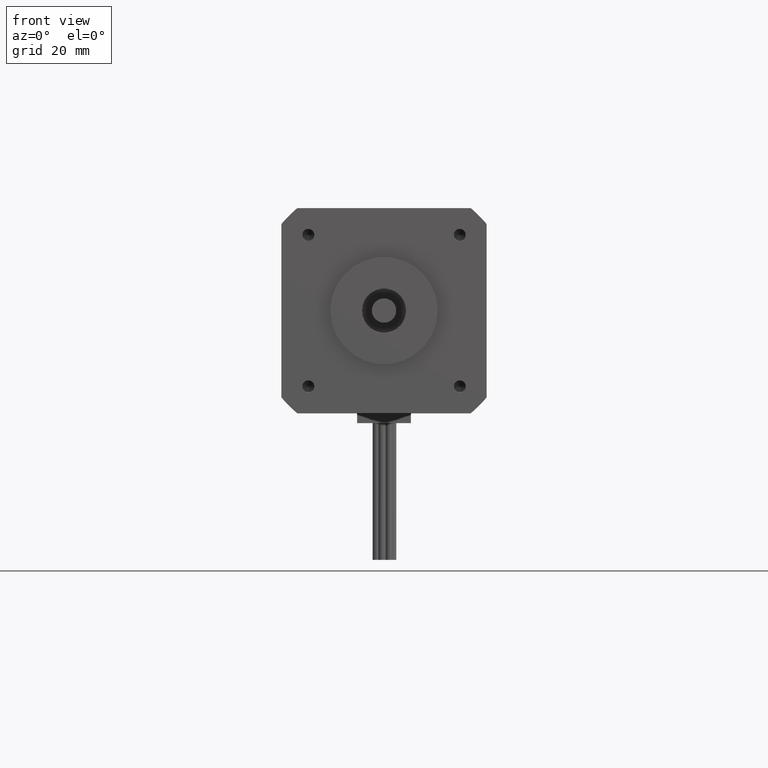
[diagram: clean part render]
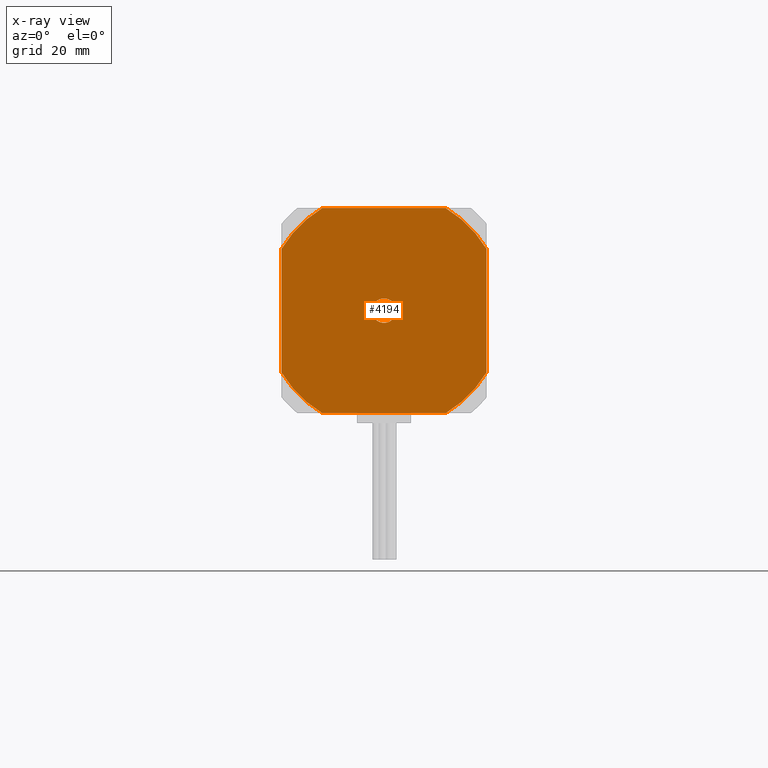
[diagram: x-ray — body ghosted, one internal face saturated and labeled with its STEP entity id]
A machine part, front view, then the same camera in x-ray: the body is ghosted and one INTERNAL B-rep face — a face not visible from any outside direction — is saturated and labeled: STEP entity #4194.
In plain terms, the highlighted planar face has unit normal (0, 1, -0).
Its self-contained STEP definition (entity closure, byte-faithful):
#227=PLANE('',#4542);
#398=LINE('',#6504,#620);
#399=LINE('',#6507,#621);
#400=LINE('',#6508,#622);
#401=LINE('',#6509,#623);
#620=VECTOR('',#5271,2.52388589282479);
#621=VECTOR('',#5274,2.52388589282479);
#622=VECTOR('',#5275,2.52388589282479);
#623=VECTOR('',#5276,2.52388589282479);
#811=FACE_BOUND('',#1228,.T.);
#928=FACE_OUTER_BOUND('',#1227,.T.);
#1227=EDGE_LOOP('',(#2930,#2931,#2932,#2933,#2934,#2935,#2936,#2937));
#1228=EDGE_LOOP('',(#2938));
#1533=CIRCLE('',#4534,2.45);
#1535=CIRCLE('',#4537,2.45);
#1538=CIRCLE('',#4541,2.45);
#1539=CIRCLE('',#4543,2.45);
#1540=CIRCLE('',#4544,0.25);
#1807=VERTEX_POINT('',#6476);
#1809=VERTEX_POINT('',#6479);
#1811=VERTEX_POINT('',#6485);
#1813=VERTEX_POINT('',#6488);
#1816=VERTEX_POINT('',#6495);
#1818=VERTEX_POINT('',#6499);
#1819=VERTEX_POINT('',#6503);
#1820=VERTEX_POINT('',#6505);
#1821=VERTEX_POINT('',#6510);
#2240=EDGE_CURVE('',#1807,#1809,#1533,.T.);
#2244=EDGE_CURVE('',#1811,#1813,#1535,.T.);
#2250=EDGE_CURVE('',#1818,#1816,#1538,.T.);
#2251=EDGE_CURVE('',#1819,#1811,#398,.T.);
#2252=EDGE_CURVE('',#1820,#1819,#1539,.T.);
#2253=EDGE_CURVE('',#1816,#1820,#399,.T.);
#2254=EDGE_CURVE('',#1809,#1818,#400,.T.);
#2255=EDGE_CURVE('',#1813,#1807,#401,.T.);
#2256=EDGE_CURVE('',#1821,#1821,#1540,.T.);
#2930=ORIENTED_EDGE('',*,*,#2251,.F.);
#2931=ORIENTED_EDGE('',*,*,#2252,.F.);
#2932=ORIENTED_EDGE('',*,*,#2253,.F.);
#2933=ORIENTED_EDGE('',*,*,#2250,.F.);
#2934=ORIENTED_EDGE('',*,*,#2254,.F.);
#2935=ORIENTED_EDGE('',*,*,#2240,.F.);
#2936=ORIENTED_EDGE('',*,*,#2255,.F.);
#2937=ORIENTED_EDGE('',*,*,#2244,.F.);
#2938=ORIENTED_EDGE('',*,*,#2256,.F.);
#4194=ADVANCED_FACE('',(#928,#811),#227,.T.);
#4534=AXIS2_PLACEMENT_3D('',#6480,#5248,#5249);
#4537=AXIS2_PLACEMENT_3D('',#6489,#5256,#5257);
#4541=AXIS2_PLACEMENT_3D('',#6501,#5267,#5268);
#4542=AXIS2_PLACEMENT_3D('',#6502,#5269,#5270);
#4543=AXIS2_PLACEMENT_3D('',#6506,#5272,#5273);
#4544=AXIS2_PLACEMENT_3D('',#6511,#5277,#5278);
#5248=DIRECTION('center_axis',(-1.45477499778469E-16,-1.,1.24501532695106E-16));
#5249=DIRECTION('ref_axis',(-1.,1.45477499778469E-16,-1.65869361839074E-32));
#5256=DIRECTION('center_axis',(-1.45477499778469E-16,-1.,1.24501532695106E-16));
#5257=DIRECTION('ref_axis',(-1.,1.45477499778469E-16,-1.65869361839074E-32));
#5267=DIRECTION('center_axis',(-1.45477499778469E-16,-1.,1.24501532695106E-16));
#5268=DIRECTION('ref_axis',(-1.,1.45477499778469E-16,-1.65869361839074E-32));
#5269=DIRECTION('center_axis',(1.45477499778469E-16,1.,-1.24501532695106E-16));
#5270=DIRECTION('ref_axis',(0.,2.22044604925031E-16,1.));
#5271=DIRECTION('',(1.,-1.45477499778469E-16,1.65869361839074E-32));
#5272=DIRECTION('center_axis',(-1.45477499778469E-16,-1.,1.24501532695106E-16));
#5273=DIRECTION('ref_axis',(-1.,1.45477499778469E-16,-1.65869361839074E-32));
#5274=DIRECTION('',(-1.52523551116391E-33,-1.24501532695106E-16,-1.));
#5275=DIRECTION('',(-1.,1.45477499778469E-16,-1.65869361839074E-32));
#5276=DIRECTION('',(1.52523551116391E-33,1.24501532695106E-16,1.));
#5277=DIRECTION('center_axis',(1.45477499778469E-16,1.,-1.24501532695106E-16));
#5278=DIRECTION('ref_axis',(-1.,1.45477499778469E-16,-1.65869361839074E-32));
#6476=CARTESIAN_POINT('',(1.68474004670102,-1.33735649038034,2.70974573869198));
#6479=CARTESIAN_POINT('',(0.84668299311342,-1.33735649038034,3.54780279227959));
#6480=CARTESIAN_POINT('Origin',(-0.415259953298977,-1.33735649038034,1.44780279227959));
#6485=CARTESIAN_POINT('',(0.84668299311342,-1.33735649038034,-0.652197207720413));
#6488=CARTESIAN_POINT('',(1.68474004670102,-1.33735649038034,0.185859845867189));
#6489=CARTESIAN_POINT('Origin',(-0.415259953298977,-1.33735649038034,1.44780279227959));
#6495=CARTESIAN_POINT('',(-2.51525995329898,-1.33735649038034,2.70974573869198));
#6499=CARTESIAN_POINT('',(-1.67720289971137,-1.33735649038034,3.54780279227959));
#6501=CARTESIAN_POINT('Origin',(-0.415259953298977,-1.33735649038034,1.44780279227959));
#6502=CARTESIAN_POINT('Origin',(-0.415259953298977,-1.33735649038034,1.44780279227959));
#6503=CARTESIAN_POINT('',(-1.67720289971137,-1.33735649038034,-0.652197207720413));
#6504=CARTESIAN_POINT('',(0.472504091929258,-1.33735649038034,-0.652197207720413));
#6505=CARTESIAN_POINT('',(-2.51525995329898,-1.33735649038034,0.185859845867189));
#6506=CARTESIAN_POINT('Origin',(-0.415259953298977,-1.33735649038034,1.44780279227959));
#6507=CARTESIAN_POINT('',(-2.51525995329898,-1.33735649038034,0.560038747051351));
#6508=CARTESIAN_POINT('',(-1.30302399852721,-1.33735649038034,3.54780279227959));
#6509=CARTESIAN_POINT('',(1.68474004670102,-1.33735649038034,2.33556683750782));
#6510=CARTESIAN_POINT('',(-0.165259953298977,-1.33735649038034,1.44780279227959));
#6511=CARTESIAN_POINT('Origin',(-0.415259953298977,-1.33735649038034,1.44780279227959));